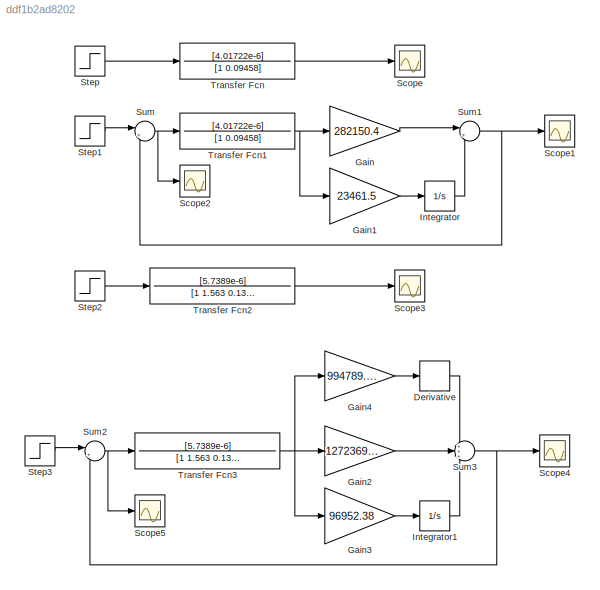
MODEL slx_ddf1b2ad8202
KIND model
CONFIG AbsTol = auto
CONFIG EnableMultiTasking = off
CONFIG FixedStep = auto
CONFIG MaxStep = auto
CONFIG MinStep = auto
CONFIG RelTol = 1e-3
CONFIG SampleTimeConstraint = Unconstrained
CONFIG SolverName = VariableStepAuto
CONFIG StartTime = 0.0
CONFIG StopTime = 10
BLOCK [Derivative] Derivative
BLOCK [Gain] Gain
  Gain = 282150.4
BLOCK [Gain] Gain1
  Gain = 23461.5
BLOCK [Gain] Gain2
  Gain = 1272369.27
BLOCK [Gain] Gain3
  Gain = 96952.38
BLOCK [Gain] Gain4
  Gain = 994789.94
BLOCK [Integrator] Integrator
BLOCK [Integrator] Integrator1
BLOCK [Scope] Scope
  Floating = off
  NumInputPorts = 1
  ScopeSpecificationString = Simulink.scopes.TimeScopeBlockCfg('CurrentConfiguration', extmgr.ConfigurationSet(extmgr.Configuration('Core','General UI',true),extmgr.Configuration('Core','Source UI',true),extmgr.Configuration('Sources','WiredSimulink',true),extmgr.Configuration('Visuals','Time Domain',true,'SerializedDisplays',{struct('MinYLimReal','-0.000003','MaxYLimReal','0.000029','YLabelReal','','MinYLimMag','0.000000','M...<+1455ch>
BLOCK [Scope] Scope1
  Floating = off
  NumInputPorts = 1
  ScopeSpecificationString = Simulink.scopes.TimeScopeBlockCfg('CurrentConfiguration', extmgr.ConfigurationSet(extmgr.Configuration('Core','General UI',true),extmgr.Configuration('Core','Source UI',true),extmgr.Configuration('Sources','WiredSimulink',true,'DataLoggingVariableName','ScopeData1'),extmgr.Configuration('Visuals','Time Domain',true,'SerializedDisplays',{struct('MinYLimReal','-0.12436','MaxYLimReal','1.11926','YLab...<+1478ch>
BLOCK [Scope] Scope2
  Floating = off
  NumInputPorts = 1
  ScopeSpecificationString = Simulink.scopes.TimeScopeBlockCfg('CurrentConfiguration', extmgr.ConfigurationSet(extmgr.Configuration('Core','General UI',true),extmgr.Configuration('Core','Source UI',true),extmgr.Configuration('Sources','WiredSimulink',true,'DataLoggingVariableName','ScopeData2'),extmgr.Configuration('Visuals','Time Domain',true,'SerializedDisplays',{struct('MinYLimReal','-0.11926','MaxYLimReal','1.12436','YLab...<+1451ch>
BLOCK [Scope] Scope3
  Floating = off
  NumInputPorts = 1
  ScopeSpecificationString = Simulink.scopes.TimeScopeBlockCfg('CurrentConfiguration', extmgr.ConfigurationSet(extmgr.Configuration('Core','General UI',true),extmgr.Configuration('Core','Source UI',true),extmgr.Configuration('Sources','WiredSimulink',true,'DataLoggingVariableName','ScopeData1'),extmgr.Configuration('Visuals','Time Domain',true,'SerializedDisplays',{struct('MinYLimReal','-0.000003','MaxYLimReal','0.000027','YL...<+1495ch>
BLOCK [Scope] Scope4
  Floating = off
  NumInputPorts = 1
  ScopeSpecificationString = Simulink.scopes.TimeScopeBlockCfg('CurrentConfiguration', extmgr.ConfigurationSet(extmgr.Configuration('Core','General UI',true),extmgr.Configuration('Core','Source UI',true),extmgr.Configuration('Sources','WiredSimulink',true,'DataLoggingVariableName','ScopeData2'),extmgr.Configuration('Visuals','Time Domain',true,'SerializedDisplays',{struct('MinYLimReal','-0.12487','MaxYLimReal','1.12379','YLab...<+1478ch>
BLOCK [Scope] Scope5
  Floating = off
  NumInputPorts = 1
  ScopeSpecificationString = Simulink.scopes.TimeScopeBlockCfg('CurrentConfiguration', extmgr.ConfigurationSet(extmgr.Configuration('Core','General UI',true),extmgr.Configuration('Core','Source UI',true),extmgr.Configuration('Sources','WiredSimulink',true,'DataLoggingVariableName','ScopeData3'),extmgr.Configuration('Visuals','Time Domain',true,'SerializedDisplays',{struct('MinYLimReal','-0.12379','MaxYLimReal','1.12487','YLab...<+1452ch>
BLOCK [Step] Step
  SampleTime = 0
  Time = 0
BLOCK [Step] Step1
  SampleTime = 0
  Time = 0
BLOCK [Step] Step2
  SampleTime = 0
  Time = 0
BLOCK [Step] Step3
  SampleTime = 0
  Time = 0
BLOCK [Sum] Sum
  Inputs = |+-
BLOCK [Sum] Sum1
  Inputs = |++
BLOCK [Sum] Sum2
  Inputs = |+-
BLOCK [Sum] Sum3
  Inputs = +++
BLOCK [TransferFcn] Transfer Fcn
  Denominator = [1 0.09458]
  Numerator = [4.01722e-6]
BLOCK [TransferFcn] Transfer Fcn1
  Denominator = [1 0.09458]
  Numerator = [4.01722e-6]
BLOCK [TransferFcn] Transfer Fcn2
  Denominator = [1 1.563 0.135]
  Numerator = [5.7389e-6]
BLOCK [TransferFcn] Transfer Fcn3
  Denominator = [1 1.563 0.135]
  Numerator = [5.7389e-6]
LINE Derivative:1 -> Sum3:1
LINE Gain1:1 -> Integrator:1
LINE Gain2:1 -> Sum3:2
LINE Gain3:1 -> Integrator1:1
LINE Gain4:1 -> Derivative:1
LINE Gain:1 -> Sum1:1
LINE Integrator1:1 -> Sum3:3
LINE Integrator:1 -> Sum1:2
LINE Step1:1 -> Sum:1
LINE Step2:1 -> Transfer Fcn2:1
LINE Step3:1 -> Sum2:1
LINE Step:1 -> Transfer Fcn:1
NET Sum1:1 -> Scope1:1, Sum:2
NET Sum2:1 -> Scope5:1, Transfer Fcn3:1
NET Sum3:1 -> Scope4:1, Sum2:2
NET Sum:1 -> Scope2:1, Transfer Fcn1:1
NET Transfer Fcn1:1 -> Gain1:1, Gain:1
LINE Transfer Fcn2:1 -> Scope3:1
NET Transfer Fcn3:1 -> Gain2:1, Gain3:1, Gain4:1
LINE Transfer Fcn:1 -> Scope:1
note: NET lines group one-source signal fan-out (src -> all destinations, sorted); 1:1 wires keep LINE
